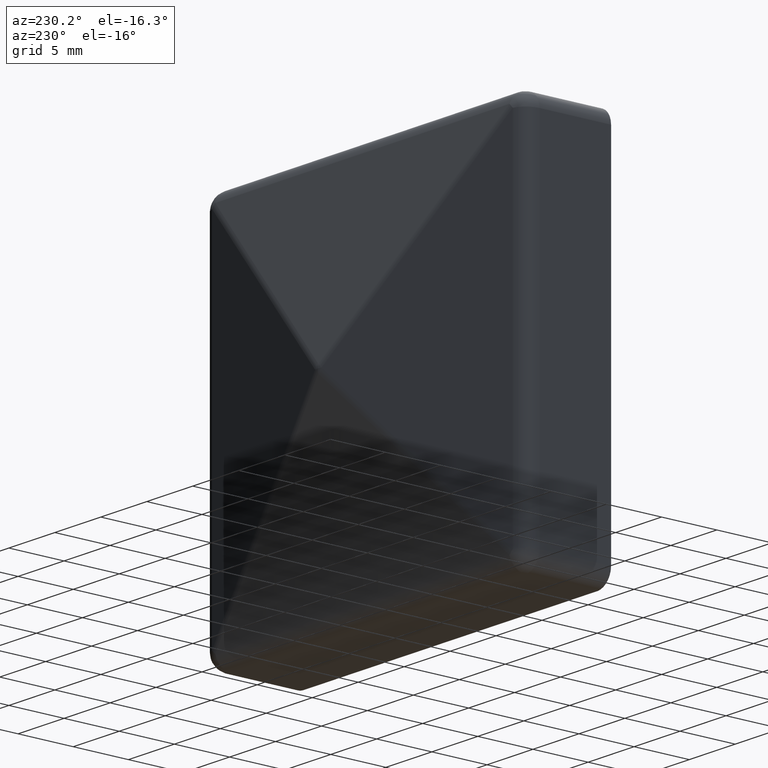
[diagram: clean part render]
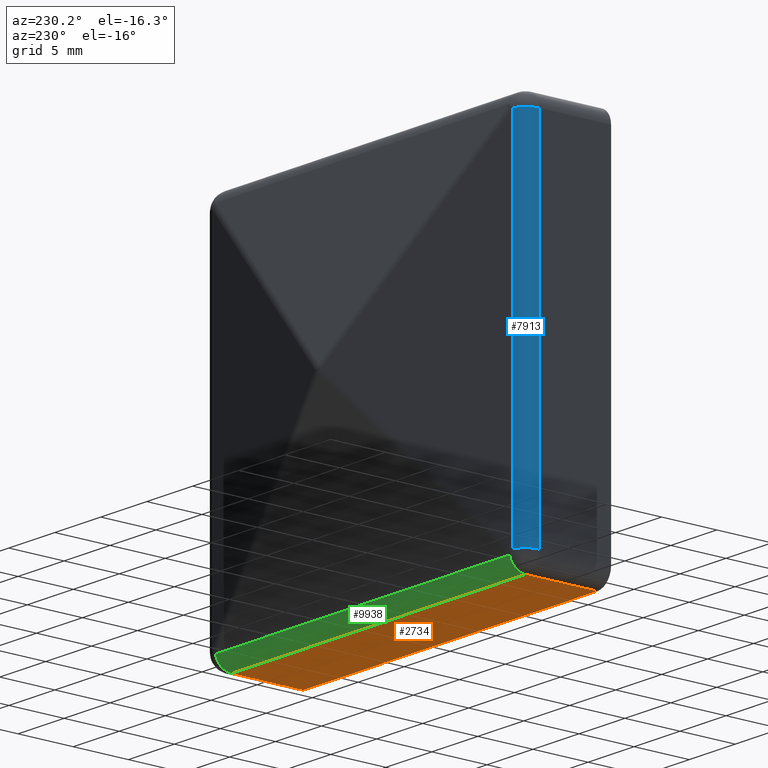
[diagram: same view with three faces highlighted in distinct colors, each labeled with its STEP entity id]
A machine part, auxiliary view with three faces highlighted in distinct colors.
Their STEP definitions:

[orange] entity #2734 — the highlighted planar face has unit normal (0, 0, 1).
#284 = VERTEX_POINT ( 'NONE', #4343 ) ;
#844 = DIRECTION ( 'NONE',  ( 0.000000000000000000, -1.000000000000000000, 0.000000000000000000 ) ) ;
#986 = EDGE_CURVE ( 'NONE', #7893, #10046, #5263, .T. ) ;
#1842 = AXIS2_PLACEMENT_3D ( 'NONE', #9604, #4160, #3173 ) ;
#2039 = VECTOR ( 'NONE', #844, 1000.000000000000000 ) ;
#2345 = ORIENTED_EDGE ( 'NONE', *, *, #7328, .F. ) ;
#2377 = CARTESIAN_POINT ( 'NONE',  ( -17.49999999999999289, 0.000000000000000000, -17.49999999999999289 ) ) ;
#2680 = CARTESIAN_POINT ( 'NONE',  ( 15.99999999999999645, 12.00000000000000000, -17.49999999999999289 ) ) ;
#2734 = ADVANCED_FACE ( 'NONE', ( #9259 ), #11457, .F. ) ;
#2780 = EDGE_CURVE ( 'NONE', #9926, #284, #3846, .T. ) ;
#3173 = DIRECTION ( 'NONE',  ( 1.000000000000000000, 0.000000000000000000, -0.000000000000000000 ) ) ;
#3846 = LINE ( 'NONE', #6772, #8116 ) ;
#4160 = DIRECTION ( 'NONE',  ( 0.000000000000000000, 0.000000000000000000, 1.000000000000000000 ) ) ;
#4338 = VECTOR ( 'NONE', #8732, 1000.000000000000000 ) ;
#4343 = CARTESIAN_POINT ( 'NONE',  ( -15.99999999999998934, 6.500000000000000000, -17.50000000000001421 ) ) ;
#4442 = LINE ( 'NONE', #7646, #5421 ) ;
#4968 = EDGE_CURVE ( 'NONE', #10046, #9926, #6306, .T. ) ;
#5263 = LINE ( 'NONE', #2680, #2039 ) ;
#5421 = VECTOR ( 'NONE', #10390, 1000.000000000000000 ) ;
#6010 = DIRECTION ( 'NONE',  ( -0.000000000000000000, 1.000000000000000000, -0.000000000000000000 ) ) ;
#6306 = LINE ( 'NONE', #2377, #4338 ) ;
#6628 = ORIENTED_EDGE ( 'NONE', *, *, #4968, .T. ) ;
#6772 = CARTESIAN_POINT ( 'NONE',  ( -15.99999999999998934, 12.00000000000000000, -17.49999999999999289 ) ) ;
#7107 = ORIENTED_EDGE ( 'NONE', *, *, #986, .T. ) ;
#7328 = EDGE_CURVE ( 'NONE', #7893, #284, #4442, .T. ) ;
#7641 = CARTESIAN_POINT ( 'NONE',  ( -15.99999999999998934, 0.000000000000000000, -17.49999999999999289 ) ) ;
#7646 = CARTESIAN_POINT ( 'NONE',  ( 17.50000000000001776, 6.500000000000000000, -17.50000000000002132 ) ) ;
#7893 = VERTEX_POINT ( 'NONE', #10172 ) ;
#7909 = CARTESIAN_POINT ( 'NONE',  ( 15.99999999999999645, 0.000000000000000000, -17.49999999999999289 ) ) ;
#7931 = EDGE_LOOP ( 'NONE', ( #2345, #7107, #6628, #9440 ) ) ;
#8116 = VECTOR ( 'NONE', #6010, 1000.000000000000000 ) ;
#8732 = DIRECTION ( 'NONE',  ( -1.000000000000000000, -0.000000000000000000, -0.000000000000000000 ) ) ;
#9259 = FACE_OUTER_BOUND ( 'NONE', #7931, .T. ) ;
#9440 = ORIENTED_EDGE ( 'NONE', *, *, #2780, .T. ) ;
#9604 = CARTESIAN_POINT ( 'NONE',  ( -17.49999999999999289, 12.00000000000000000, -17.49999999999999289 ) ) ;
#9926 = VERTEX_POINT ( 'NONE', #7641 ) ;
#10046 = VERTEX_POINT ( 'NONE', #7909 ) ;
#10172 = CARTESIAN_POINT ( 'NONE',  ( 15.99999999999999645, 6.500000000000000000, -17.50000000000002132 ) ) ;
#10390 = DIRECTION ( 'NONE',  ( -1.000000000000000000, -0.000000000000000000, 2.220446049250313081E-16 ) ) ;
#11457 = PLANE ( 'NONE',  #1842 ) ;

[blue] entity #7913 — the highlighted cylindrical surface (edge-blend (fillet) strip) has radius 1.5 mm, axis along (-0, -0, 1).
#11 = DIRECTION ( 'NONE',  ( 1.000000000000000000, 0.000000000000000000, 0.000000000000000000 ) ) ;
#301 = DIRECTION ( 'NONE',  ( -0.000000000000000000, -0.000000000000000000, 1.000000000000000000 ) ) ;
#534 = DIRECTION ( 'NONE',  ( -0.000000000000000000, -0.000000000000000000, 1.000000000000000000 ) ) ;
#780 = FACE_OUTER_BOUND ( 'NONE', #7873, .T. ) ;
#1551 = EDGE_CURVE ( 'NONE', #6787, #2132, #8992, .T. ) ;
#1758 = LINE ( 'NONE', #5188, #5666 ) ;
#2014 = CARTESIAN_POINT ( 'NONE',  ( -16.00000000000001776, 6.500000000000000000, -17.49999999999999289 ) ) ;
#2031 = LINE ( 'NONE', #11747, #10382 ) ;
#2132 = VERTEX_POINT ( 'NONE', #10148 ) ;
#2639 = DIRECTION ( 'NONE',  ( -0.000000000000000000, -0.000000000000000000, 1.000000000000000000 ) ) ;
#2697 = ORIENTED_EDGE ( 'NONE', *, *, #8211, .F. ) ;
#3421 = ORIENTED_EDGE ( 'NONE', *, *, #4593, .T. ) ;
#3747 = CARTESIAN_POINT ( 'NONE',  ( -16.36380343755451605, 7.955213750217999369, -16.00000000000001776 ) ) ;
#3845 = VERTEX_POINT ( 'NONE', #11386 ) ;
#4593 = EDGE_CURVE ( 'NONE', #7421, #3845, #11094, .T. ) ;
#4902 = ORIENTED_EDGE ( 'NONE', *, *, #9557, .T. ) ;
#5188 = CARTESIAN_POINT ( 'NONE',  ( -17.50000000000001776, 6.500000000000000000, -17.49999999999999289 ) ) ;
#5660 = DIRECTION ( 'NONE',  ( 1.000000000000000000, 0.000000000000000000, 0.000000000000000000 ) ) ;
#5666 = VECTOR ( 'NONE', #7906, 1000.000000000000000 ) ;
#5956 = DIRECTION ( 'NONE',  ( 1.000000000000000000, 0.000000000000000000, 0.000000000000000000 ) ) ;
#5968 = CYLINDRICAL_SURFACE ( 'NONE', #10505, 1.500000000000001332 ) ;
#5997 = AXIS2_PLACEMENT_3D ( 'NONE', #9974, #6258, #11 ) ;
#6092 = ORIENTED_EDGE ( 'NONE', *, *, #1551, .T. ) ;
#6258 = DIRECTION ( 'NONE',  ( 0.000000000000000000, 0.000000000000000000, -1.000000000000000000 ) ) ;
#6787 = VERTEX_POINT ( 'NONE', #3747 ) ;
#7071 = AXIS2_PLACEMENT_3D ( 'NONE', #10458, #534, #5956 ) ;
#7421 = VERTEX_POINT ( 'NONE', #11751 ) ;
#7873 = EDGE_LOOP ( 'NONE', ( #2697, #6092, #4902, #3421 ) ) ;
#7906 = DIRECTION ( 'NONE',  ( -0.000000000000000000, -0.000000000000000000, 1.000000000000000000 ) ) ;
#7913 = ADVANCED_FACE ( 'NONE', ( #780 ), #5968, .T. ) ;
#8211 = EDGE_CURVE ( 'NONE', #6787, #3845, #2031, .T. ) ;
#8992 = CIRCLE ( 'NONE', #7071, 1.500000000000001332 ) ;
#9557 = EDGE_CURVE ( 'NONE', #2132, #7421, #1758, .T. ) ;
#9974 = CARTESIAN_POINT ( 'NONE',  ( -16.00000000000001776, 6.500000000000000000, 16.00000000000002487 ) ) ;
#10148 = CARTESIAN_POINT ( 'NONE',  ( -17.50000000000001776, 6.500000000000000000, -15.99999999999998934 ) ) ;
#10382 = VECTOR ( 'NONE', #2639, 1000.000000000000000 ) ;
#10458 = CARTESIAN_POINT ( 'NONE',  ( -16.00000000000001776, 6.500000000000000000, -16.00000000000001421 ) ) ;
#10505 = AXIS2_PLACEMENT_3D ( 'NONE', #2014, #301, #5660 ) ;
#11094 = CIRCLE ( 'NONE', #5997, 1.500000000000001332 ) ;
#11386 = CARTESIAN_POINT ( 'NONE',  ( -16.36380343755451605, 7.955213750217999369, 16.00000000000002487 ) ) ;
#11747 = CARTESIAN_POINT ( 'NONE',  ( -16.36380343755451605, 7.955213750217999369, -17.49999999999999289 ) ) ;
#11751 = CARTESIAN_POINT ( 'NONE',  ( -17.50000000000001776, 6.500000000000000000, 16.00000000000001066 ) ) ;

[green] entity #9938 — the highlighted cylindrical surface (edge-blend (fillet) strip) has radius 1.5 mm, axis along (-1, -0, 0).
#95 = VERTEX_POINT ( 'NONE', #9496 ) ;
#284 = VERTEX_POINT ( 'NONE', #4343 ) ;
#943 = CARTESIAN_POINT ( 'NONE',  ( -16.00000000000001776, 6.500000000000000000, -16.00000000000001421 ) ) ;
#1828 = EDGE_LOOP ( 'NONE', ( #10594, #7007, #4970, #7751 ) ) ;
#1925 = CARTESIAN_POINT ( 'NONE',  ( 16.00000000000001776, 6.500000000000000000, -16.00000000000002132 ) ) ;
#2583 = CYLINDRICAL_SURFACE ( 'NONE', #7892, 1.500000000000001332 ) ;
#2600 = VECTOR ( 'NONE', #6887, 1000.000000000000000 ) ;
#2891 = EDGE_CURVE ( 'NONE', #284, #95, #3980, .T. ) ;
#3684 = DIRECTION ( 'NONE',  ( -1.000000000000000000, -0.000000000000000000, 2.220446049250313081E-16 ) ) ;
#3980 = CIRCLE ( 'NONE', #6681, 1.500000000000001332 ) ;
#4343 = CARTESIAN_POINT ( 'NONE',  ( -15.99999999999998934, 6.500000000000000000, -17.50000000000001421 ) ) ;
#4442 = LINE ( 'NONE', #7646, #5421 ) ;
#4970 = ORIENTED_EDGE ( 'NONE', *, *, #9932, .F. ) ;
#5386 = LINE ( 'NONE', #8609, #2600 ) ;
#5421 = VECTOR ( 'NONE', #10390, 1000.000000000000000 ) ;
#5916 = DIRECTION ( 'NONE',  ( -1.000000000000000000, -0.000000000000000000, 2.220446049250313081E-16 ) ) ;
#6681 = AXIS2_PLACEMENT_3D ( 'NONE', #943, #9090, #10011 ) ;
#6747 = DIRECTION ( 'NONE',  ( 0.000000000000000000, 0.000000000000000000, 1.000000000000000000 ) ) ;
#6887 = DIRECTION ( 'NONE',  ( -1.000000000000000000, -0.000000000000000000, 2.220446049250313081E-16 ) ) ;
#7007 = ORIENTED_EDGE ( 'NONE', *, *, #2891, .T. ) ;
#7328 = EDGE_CURVE ( 'NONE', #7893, #284, #4442, .T. ) ;
#7646 = CARTESIAN_POINT ( 'NONE',  ( 17.50000000000001776, 6.500000000000000000, -17.50000000000002132 ) ) ;
#7751 = ORIENTED_EDGE ( 'NONE', *, *, #10821, .T. ) ;
#7892 = AXIS2_PLACEMENT_3D ( 'NONE', #10404, #5916, #6747 ) ;
#7893 = VERTEX_POINT ( 'NONE', #10172 ) ;
#8237 = CARTESIAN_POINT ( 'NONE',  ( 16.00000000000001776, 7.955213750217999369, -16.36380343755451960 ) ) ;
#8609 = CARTESIAN_POINT ( 'NONE',  ( 17.50000000000001776, 7.955213750217999369, -16.36380343755451960 ) ) ;
#8852 = VERTEX_POINT ( 'NONE', #8237 ) ;
#8979 = FACE_OUTER_BOUND ( 'NONE', #1828, .T. ) ;
#9090 = DIRECTION ( 'NONE',  ( 1.000000000000000000, 0.000000000000000000, -2.220446049250313081E-16 ) ) ;
#9496 = CARTESIAN_POINT ( 'NONE',  ( -16.00000000000001776, 7.955213750217999369, -16.36380343755451250 ) ) ;
#9932 = EDGE_CURVE ( 'NONE', #8852, #95, #5386, .T. ) ;
#9938 = ADVANCED_FACE ( 'NONE', ( #8979 ), #2583, .T. ) ;
#10011 = DIRECTION ( 'NONE',  ( 0.000000000000000000, 0.000000000000000000, 1.000000000000000000 ) ) ;
#10050 = DIRECTION ( 'NONE',  ( 0.000000000000000000, 0.000000000000000000, 1.000000000000000000 ) ) ;
#10172 = CARTESIAN_POINT ( 'NONE',  ( 15.99999999999999645, 6.500000000000000000, -17.50000000000002132 ) ) ;
#10230 = CIRCLE ( 'NONE', #10406, 1.500000000000001332 ) ;
#10390 = DIRECTION ( 'NONE',  ( -1.000000000000000000, -0.000000000000000000, 2.220446049250313081E-16 ) ) ;
#10404 = CARTESIAN_POINT ( 'NONE',  ( 17.50000000000001776, 6.500000000000000000, -16.00000000000002132 ) ) ;
#10406 = AXIS2_PLACEMENT_3D ( 'NONE', #1925, #3684, #10050 ) ;
#10594 = ORIENTED_EDGE ( 'NONE', *, *, #7328, .T. ) ;
#10821 = EDGE_CURVE ( 'NONE', #8852, #7893, #10230, .T. ) ;